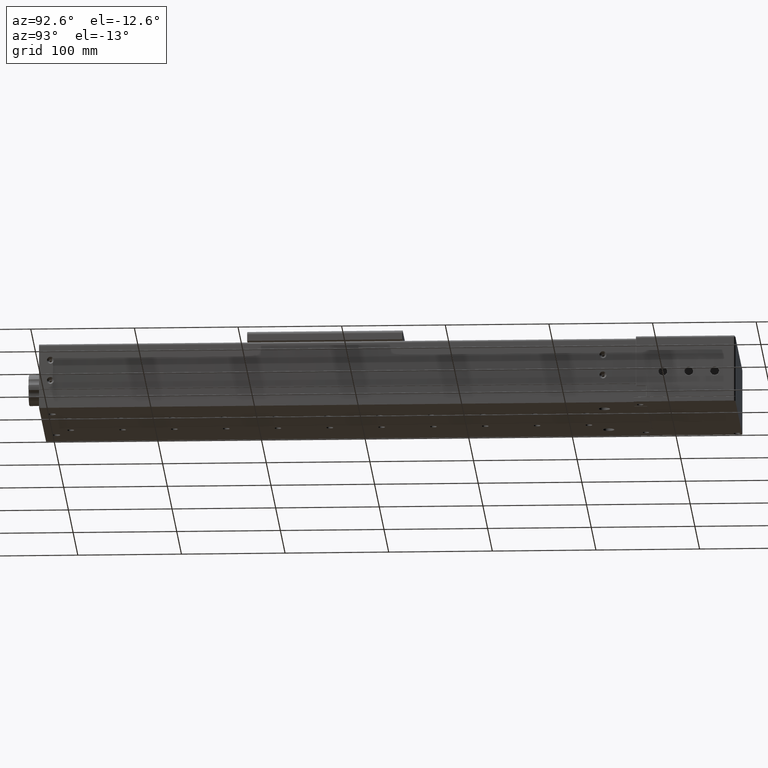
[diagram: clean part render]
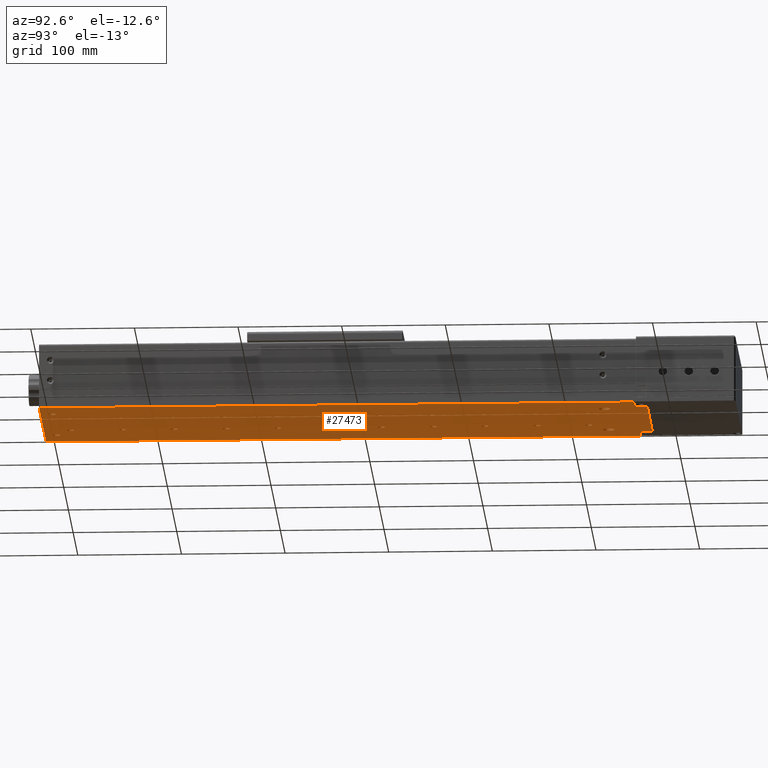
[diagram: same view with one face highlighted and labeled with its STEP entity id]
A machine part, auxiliary view. The second image highlights one B-rep face of the part: STEP entity #27473.
In plain terms, the highlighted planar face has unit normal (0, 0, 1).
Its self-contained STEP definition (entity closure, byte-faithful):
#279 = AXIS2_PLACEMENT_3D ( 'NONE', #15485, #71855, #52906 ) ;
#487 = VERTEX_POINT ( 'NONE', #1326 ) ;
#602 = EDGE_CURVE ( 'NONE', #27250, #48139, #22687, .T. ) ;
#1086 = VERTEX_POINT ( 'NONE', #22974 ) ;
#1259 = CARTESIAN_POINT ( 'NONE',  ( -24.58543230288090342, -98.96880975817198589, -21.95334974644444870 ) ) ;
#1291 = CARTESIAN_POINT ( 'NONE',  ( -45.58543230288089632, 169.3311902418280113, -21.95334974644444870 ) ) ;
#1326 = CARTESIAN_POINT ( 'NONE',  ( -45.58543230288079684, 419.3311902418280397, -21.95334974644444870 ) ) ;
#1374 = VERTEX_POINT ( 'NONE', #66787 ) ;
#1511 = DIRECTION ( 'NONE',  ( 0.000000000000000000, 0.000000000000000000, 1.000000000000000000 ) ) ;
#1569 = EDGE_CURVE ( 'NONE', #40526, #77483, #32326, .T. ) ;
#1806 = CARTESIAN_POINT ( 'NONE',  ( -45.58543230288079684, 216.0311902418279999, -21.95334974644444870 ) ) ;
#1887 = ORIENTED_EDGE ( 'NONE', *, *, #7838, .T. ) ;
#2257 = ORIENTED_EDGE ( 'NONE', *, *, #46581, .T. ) ;
#2282 = ORIENTED_EDGE ( 'NONE', *, *, #61911, .T. ) ;
#2409 = ORIENTED_EDGE ( 'NONE', *, *, #7058, .T. ) ;
#2726 = VERTEX_POINT ( 'NONE', #66497 ) ;
#2813 = VERTEX_POINT ( 'NONE', #11757 ) ;
#3044 = CARTESIAN_POINT ( 'NONE',  ( -45.58543230288079684, 216.0311902418279999, -21.95334974644444870 ) ) ;
#3141 = CIRCLE ( 'NONE', #70161, 3.300000000000000711 ) ;
#3279 = CARTESIAN_POINT ( 'NONE',  ( -45.58543230288079684, 219.3311902418280113, -21.95334974644444870 ) ) ;
#3294 = AXIS2_PLACEMENT_3D ( 'NONE', #53556, #74133, #11169 ) ;
#3390 = EDGE_LOOP ( 'NONE', ( #64532, #79206 ) ) ;
#3430 = EDGE_CURVE ( 'NONE', #56616, #49603, #44733, .T. ) ;
#3671 = FACE_BOUND ( 'NONE', #65687, .T. ) ;
#3918 = VERTEX_POINT ( 'NONE', #55601 ) ;
#4125 = CIRCLE ( 'NONE', #54025, 3.300000000000025135 ) ;
#4309 = EDGE_LOOP ( 'NONE', ( #47593, #41946 ) ) ;
#4347 = DIRECTION ( 'NONE',  ( 0.000000000000000000, 0.000000000000000000, 1.000000000000000000 ) ) ;
#4423 = DIRECTION ( 'NONE',  ( 0.000000000000000000, 1.000000000000000000, 0.000000000000000000 ) ) ;
#4480 = FACE_BOUND ( 'NONE', #37644, .T. ) ;
#4633 = VERTEX_POINT ( 'NONE', #27515 ) ;
#4751 = DIRECTION ( 'NONE',  ( 0.000000000000000000, 0.000000000000000000, -1.000000000000000000 ) ) ;
#4768 = CIRCLE ( 'NONE', #15294, 3.300000000000025135 ) ;
#4781 = EDGE_CURVE ( 'NONE', #4633, #1086, #11955, .T. ) ;
#4917 = ORIENTED_EDGE ( 'NONE', *, *, #21701, .F. ) ;
#5173 = AXIS2_PLACEMENT_3D ( 'NONE', #76944, #14381, #39484 ) ;
#5645 = ORIENTED_EDGE ( 'NONE', *, *, #72952, .T. ) ;
#5664 = ORIENTED_EDGE ( 'NONE', *, *, #73902, .T. ) ;
#5856 = VERTEX_POINT ( 'NONE', #35179 ) ;
#5911 = VERTEX_POINT ( 'NONE', #52882 ) ;
#5921 = DIRECTION ( 'NONE',  ( 0.000000000000000000, 0.000000000000000000, 1.000000000000000000 ) ) ;
#6085 = EDGE_LOOP ( 'NONE', ( #41246, #34221 ) ) ;
#6249 = DIRECTION ( 'NONE',  ( 0.000000000000000000, 0.000000000000000000, 1.000000000000000000 ) ) ;
#6747 = VERTEX_POINT ( 'NONE', #41455 ) ;
#7058 = EDGE_CURVE ( 'NONE', #50783, #25917, #16400, .T. ) ;
#7162 = VERTEX_POINT ( 'NONE', #70629 ) ;
#7382 = EDGE_CURVE ( 'NONE', #21147, #1374, #43821, .T. ) ;
#7414 = FACE_BOUND ( 'NONE', #81017, .T. ) ;
#7675 = VERTEX_POINT ( 'NONE', #21146 ) ;
#7690 = VERTEX_POINT ( 'NONE', #74593 ) ;
#7731 = VECTOR ( 'NONE', #35031, 1000.000000000000000 ) ;
#7838 = EDGE_CURVE ( 'NONE', #53568, #487, #61790, .T. ) ;
#7850 = CIRCLE ( 'NONE', #38061, 3.300000000000000711 ) ;
#7888 = EDGE_CURVE ( 'NONE', #24649, #25649, #25056, .T. ) ;
#7940 = AXIS2_PLACEMENT_3D ( 'NONE', #56457, #75416, #51905 ) ;
#8236 = CIRCLE ( 'NONE', #37134, 3.299999999999997158 ) ;
#8351 = VECTOR ( 'NONE', #12036, 1000.000000000000000 ) ;
#8359 = DIRECTION ( 'NONE',  ( 0.000000000000000000, 1.000000000000000000, 0.000000000000000000 ) ) ;
#8657 = ORIENTED_EDGE ( 'NONE', *, *, #7382, .F. ) ;
#8747 = CARTESIAN_POINT ( 'NONE',  ( -95.58543230288080395, 416.0311902418279715, -21.95334974644444870 ) ) ;
#8754 = AXIS2_PLACEMENT_3D ( 'NONE', #37862, #25535, #81497 ) ;
#8848 = VERTEX_POINT ( 'NONE', #38773 ) ;
#8942 = CARTESIAN_POINT ( 'NONE',  ( -95.58543230288090342, 16.03119024182795016, -21.95334974644444870 ) ) ;
#9039 = FACE_BOUND ( 'NONE', #33281, .T. ) ;
#9287 = EDGE_LOOP ( 'NONE', ( #69389, #56536 ) ) ;
#9530 = CARTESIAN_POINT ( 'NONE',  ( -15.58543230288080039, 476.0311902418279715, -21.95334974644444870 ) ) ;
#9837 = ORIENTED_EDGE ( 'NONE', *, *, #67572, .F. ) ;
#10122 = DIRECTION ( 'NONE',  ( 0.000000000000000000, 1.000000000000000000, 0.000000000000000000 ) ) ;
#10349 = DIRECTION ( 'NONE',  ( 0.000000000000000000, 1.000000000000000000, 0.000000000000000000 ) ) ;
#10452 = DIRECTION ( 'NONE',  ( 0.000000000000000000, 1.000000000000000000, 0.000000000000000000 ) ) ;
#10542 = EDGE_CURVE ( 'NONE', #6747, #21147, #24948, .T. ) ;
#10642 = PLANE ( 'NONE',  #38570 ) ;
#10707 = CIRCLE ( 'NONE', #59341, 3.299999999999997158 ) ;
#10757 = EDGE_CURVE ( 'NONE', #5911, #37740, #36508, .T. ) ;
#10906 = DIRECTION ( 'NONE',  ( -1.224646799147351975E-16, -1.000000000000000000, 0.000000000000000000 ) ) ;
#11005 = DIRECTION ( 'NONE',  ( 0.000000000000000000, 1.000000000000000000, 0.000000000000000000 ) ) ;
#11044 = DIRECTION ( 'NONE',  ( 0.000000000000000000, 0.000000000000000000, 1.000000000000000000 ) ) ;
#11169 = DIRECTION ( 'NONE',  ( 0.000000000000000000, -1.000000000000000000, 0.000000000000000000 ) ) ;
#11216 = DIRECTION ( 'NONE',  ( 0.000000000000000000, 1.000000000000000000, 0.000000000000000000 ) ) ;
#11276 = EDGE_CURVE ( 'NONE', #66854, #2726, #65911, .T. ) ;
#11332 = EDGE_LOOP ( 'NONE', ( #2282, #1887 ) ) ;
#11546 = CIRCLE ( 'NONE', #14204, 3.299999999999997158 ) ;
#11633 = CARTESIAN_POINT ( 'NONE',  ( -45.58543230288079684, 369.3311902418279828, -21.95334974644444870 ) ) ;
#11757 = CARTESIAN_POINT ( 'NONE',  ( -95.58543230288080395, 219.3311902418280113, -21.95334974644444870 ) ) ;
#11818 = CARTESIAN_POINT ( 'NONE',  ( -45.58543230288089632, 166.0311902418280283, -21.95334974644444870 ) ) ;
#11837 = CARTESIAN_POINT ( 'NONE',  ( 4.414567697119205825, 463.8311902418279828, -21.95334974644444870 ) ) ;
#11889 = VERTEX_POINT ( 'NONE', #80110 ) ;
#11955 = CIRCLE ( 'NONE', #69773, 3.300000000000025135 ) ;
#12033 = EDGE_LOOP ( 'NONE', ( #26141, #46053 ) ) ;
#12036 = DIRECTION ( 'NONE',  ( 1.224646799147351975E-16, 1.000000000000000000, 0.000000000000000000 ) ) ;
#12612 = CARTESIAN_POINT ( 'NONE',  ( -45.58543230288089632, 119.3311902418280113, -21.95334974644444870 ) ) ;
#13135 = ORIENTED_EDGE ( 'NONE', *, *, #25790, .T. ) ;
#13190 = AXIS2_PLACEMENT_3D ( 'NONE', #41409, #66506, #10122 ) ;
#13293 = CARTESIAN_POINT ( 'NONE',  ( -45.58543230288079684, 266.0311902418279715, -21.95334974644444870 ) ) ;
#13390 = DIRECTION ( 'NONE',  ( 0.000000000000000000, -1.000000000000000000, 0.000000000000000000 ) ) ;
#13643 = ORIENTED_EDGE ( 'NONE', *, *, #50950, .T. ) ;
#13727 = CARTESIAN_POINT ( 'NONE',  ( -45.58543230288079684, 412.7311902418280170, -21.95334974644444870 ) ) ;
#14186 = DIRECTION ( 'NONE',  ( 0.000000000000000000, 0.000000000000000000, 1.000000000000000000 ) ) ;
#14204 = AXIS2_PLACEMENT_3D ( 'NONE', #1806, #50366, #56534 ) ;
#14355 = EDGE_CURVE ( 'NONE', #46437, #42860, #4125, .T. ) ;
#14381 = DIRECTION ( 'NONE',  ( 0.000000000000000000, 0.000000000000000000, 1.000000000000000000 ) ) ;
#14531 = AXIS2_PLACEMENT_3D ( 'NONE', #25086, #14656, #39750 ) ;
#14656 = DIRECTION ( 'NONE',  ( 0.000000000000000000, 0.000000000000000000, -1.000000000000000000 ) ) ;
#15067 = AXIS2_PLACEMENT_3D ( 'NONE', #46653, #14186, #71367 ) ;
#15247 = CARTESIAN_POINT ( 'NONE',  ( -95.58543230288080395, 216.0311902418279999, -21.95334974644444870 ) ) ;
#15294 = AXIS2_PLACEMENT_3D ( 'NONE', #49104, #80015, #10452 ) ;
#15371 = CIRCLE ( 'NONE', #61338, 3.300000000000025135 ) ;
#15485 = CARTESIAN_POINT ( 'NONE',  ( -95.58543230288090342, -33.96880975817204984, -21.95334974644444870 ) ) ;
#15680 = CARTESIAN_POINT ( 'NONE',  ( -45.58543230288089632, 19.33119024182800061, -21.95334974644444870 ) ) ;
#16025 = VERTEX_POINT ( 'NONE', #64233 ) ;
#16040 = DIRECTION ( 'NONE',  ( 0.000000000000000000, 0.000000000000000000, 1.000000000000000000 ) ) ;
#16051 = DIRECTION ( 'NONE',  ( 0.000000000000000000, 0.000000000000000000, 1.000000000000000000 ) ) ;
#16073 = DIRECTION ( 'NONE',  ( 0.000000000000000000, -1.000000000000000000, 0.000000000000000000 ) ) ;
#16122 = DIRECTION ( 'NONE',  ( 0.000000000000000000, 0.000000000000000000, 1.000000000000000000 ) ) ;
#16224 = DIRECTION ( 'NONE',  ( 0.000000000000000000, 1.000000000000000000, 0.000000000000000000 ) ) ;
#16400 = CIRCLE ( 'NONE', #38816, 3.299999999999997158 ) ;
#16404 = CARTESIAN_POINT ( 'NONE',  ( -95.58543230288080395, 269.3311902418279828, -21.95334974644444870 ) ) ;
#16440 = AXIS2_PLACEMENT_3D ( 'NONE', #8942, #53748, #34453 ) ;
#16790 = EDGE_CURVE ( 'NONE', #52658, #67846, #28213, .T. ) ;
#16804 = FACE_BOUND ( 'NONE', #37211, .T. ) ;
#16807 = EDGE_CURVE ( 'NONE', #50523, #54989, #32122, .T. ) ;
#17269 = AXIS2_PLACEMENT_3D ( 'NONE', #28739, #78923, #58760 ) ;
#17419 = EDGE_CURVE ( 'NONE', #65327, #7675, #41384, .T. ) ;
#17514 = DIRECTION ( 'NONE',  ( -1.000000000000000000, 1.224646799147351975E-16, 0.000000000000000000 ) ) ;
#17925 = CARTESIAN_POINT ( 'NONE',  ( -145.5854323028808324, 463.8311902418279828, -21.95334974644444870 ) ) ;
#18005 = CARTESIAN_POINT ( 'NONE',  ( -45.58543230288089632, -30.66880975817205268, -21.95334974644444870 ) ) ;
#18184 = CIRCLE ( 'NONE', #27374, 3.299999999999997158 ) ;
#18252 = CARTESIAN_POINT ( 'NONE',  ( -45.58543230288089632, 116.0311902418279999, -21.95334974644444870 ) ) ;
#18450 = AXIS2_PLACEMENT_3D ( 'NONE', #26846, #64260, #31788 ) ;
#18610 = CARTESIAN_POINT ( 'NONE',  ( -116.5854323028808039, 434.2311902418280170, -21.95334974644444870 ) ) ;
#18644 = CARTESIAN_POINT ( 'NONE',  ( -45.58543230288089632, 62.73119024182799564, -21.95334974644444870 ) ) ;
#18730 = ORIENTED_EDGE ( 'NONE', *, *, #20055, .T. ) ;
#18965 = DIRECTION ( 'NONE',  ( 1.619162177863810046E-16, -1.000000000000000000, 0.000000000000000000 ) ) ;
#19051 = CARTESIAN_POINT ( 'NONE',  ( -95.58543230288080395, 262.7311902418280170, -21.95334974644444870 ) ) ;
#19485 = DIRECTION ( 'NONE',  ( 0.000000000000000000, 1.000000000000000000, 0.000000000000000000 ) ) ;
#19628 = DIRECTION ( 'NONE',  ( 0.000000000000000000, 0.000000000000000000, 1.000000000000000000 ) ) ;
#19909 = EDGE_LOOP ( 'NONE', ( #40985, #55888 ) ) ;
#19976 = DIRECTION ( 'NONE',  ( 0.000000000000000000, 0.000000000000000000, -1.000000000000000000 ) ) ;
#20055 = EDGE_CURVE ( 'NONE', #74950, #29435, #60516, .T. ) ;
#20075 = VECTOR ( 'NONE', #34130, 1000.000000000000000 ) ;
#20101 = VERTEX_POINT ( 'NONE', #31203 ) ;
#20127 = EDGE_LOOP ( 'NONE', ( #64842, #43306, #4917, #67304, #77523, #8657, #57438, #45805 ) ) ;
#20707 = DIRECTION ( 'NONE',  ( 0.000000000000000000, 0.000000000000000000, 1.000000000000000000 ) ) ;
#20887 = EDGE_CURVE ( 'NONE', #3918, #32875, #25270, .T. ) ;
#20933 = CARTESIAN_POINT ( 'NONE',  ( -95.58543230288090342, -87.26880975817211095, -21.95334974644444870 ) ) ;
#21077 = DIRECTION ( 'NONE',  ( 0.000000000000000000, 0.000000000000000000, 1.000000000000000000 ) ) ;
#21105 = CARTESIAN_POINT ( 'NONE',  ( -45.58543230288079684, 316.0311902418280283, -21.95334974644444870 ) ) ;
#21146 = CARTESIAN_POINT ( 'NONE',  ( -116.5854323028808039, 439.7311902418280170, -21.95334974644444870 ) ) ;
#21147 = VERTEX_POINT ( 'NONE', #55757 ) ;
#21280 = CIRCLE ( 'NONE', #17269, 3.299999999999997158 ) ;
#21437 = CARTESIAN_POINT ( 'NONE',  ( -45.58543230288079684, 366.0311902418280283, -21.95334974644444870 ) ) ;
#21701 = EDGE_CURVE ( 'NONE', #60879, #66854, #71564, .T. ) ;
#21752 = CARTESIAN_POINT ( 'NONE',  ( -95.58543230288080395, 169.3311902418280113, -21.95334974644444870 ) ) ;
#21804 = FACE_BOUND ( 'NONE', #58675, .T. ) ;
#21933 = VERTEX_POINT ( 'NONE', #18005 ) ;
#22016 = VERTEX_POINT ( 'NONE', #50098 ) ;
#22429 = CIRCLE ( 'NONE', #27687, 3.300000000000025135 ) ;
#22449 = DIRECTION ( 'NONE',  ( 0.000000000000000000, 1.000000000000000000, 0.000000000000000000 ) ) ;
#22470 = CARTESIAN_POINT ( 'NONE',  ( -116.5854323028808039, 434.2311902418280170, -21.95334974644444870 ) ) ;
#22552 = DIRECTION ( 'NONE',  ( 1.000000000000000000, -1.224646799147351975E-16, 0.000000000000000000 ) ) ;
#22687 = CIRCLE ( 'NONE', #46347, 5.500000000000005329 ) ;
#22812 = VERTEX_POINT ( 'NONE', #18644 ) ;
#22974 = CARTESIAN_POINT ( 'NONE',  ( -95.58543230288080395, 369.3311902418279828, -21.95334974644444870 ) ) ;
#23016 = FACE_BOUND ( 'NONE', #19909, .T. ) ;
#23038 = AXIS2_PLACEMENT_3D ( 'NONE', #80671, #31678, #37440 ) ;
#23202 = CARTESIAN_POINT ( 'NONE',  ( -95.58543230288090342, -80.66880975817198873, -21.95334974644444870 ) ) ;
#23422 = FACE_BOUND ( 'NONE', #61188, .T. ) ;
#23439 = DIRECTION ( 'NONE',  ( 0.000000000000000000, 1.000000000000000000, 0.000000000000000000 ) ) ;
#23705 = CIRCLE ( 'NONE', #14531, 4.000000000000003553 ) ;
#23775 = DIRECTION ( 'NONE',  ( 0.000000000000000000, 1.000000000000000000, 0.000000000000000000 ) ) ;
#23847 = ORIENTED_EDGE ( 'NONE', *, *, #77163, .T. ) ;
#23933 = CARTESIAN_POINT ( 'NONE',  ( -24.58543230288080039, 428.7311902418279601, -21.95334974644444870 ) ) ;
#24649 = VERTEX_POINT ( 'NONE', #16404 ) ;
#24651 = CARTESIAN_POINT ( 'NONE',  ( -45.58543230288079684, 266.0311902418279715, -21.95334974644444870 ) ) ;
#24948 = LINE ( 'NONE', #17925, #52296 ) ;
#25056 = CIRCLE ( 'NONE', #18450, 3.300000000000025135 ) ;
#25086 = CARTESIAN_POINT ( 'NONE',  ( -24.58543230288090342, -98.96880975817198589, -21.95334974644444870 ) ) ;
#25270 = CIRCLE ( 'NONE', #279, 3.300000000000000711 ) ;
#25433 = EDGE_CURVE ( 'NONE', #11889, #7690, #50531, .T. ) ;
#25535 = DIRECTION ( 'NONE',  ( 0.000000000000000000, 0.000000000000000000, 1.000000000000000000 ) ) ;
#25608 = VERTEX_POINT ( 'NONE', #23202 ) ;
#25649 = VERTEX_POINT ( 'NONE', #19051 ) ;
#25659 = CIRCLE ( 'NONE', #16440, 3.300000000000000711 ) ;
#25706 = ORIENTED_EDGE ( 'NONE', *, *, #1569, .T. ) ;
#25790 = EDGE_CURVE ( 'NONE', #67846, #52658, #28077, .T. ) ;
#25796 = EDGE_LOOP ( 'NONE', ( #64919, #49658 ) ) ;
#25917 = VERTEX_POINT ( 'NONE', #27264 ) ;
#25960 = CARTESIAN_POINT ( 'NONE',  ( -95.58543230288090342, 19.33119024182795087, -21.95334974644444870 ) ) ;
#26141 = ORIENTED_EDGE ( 'NONE', *, *, #62636, .F. ) ;
#26218 = CARTESIAN_POINT ( 'NONE',  ( -15.58543230288080039, 463.8311902418279828, -21.95334974644444870 ) ) ;
#26837 = DIRECTION ( 'NONE',  ( 0.000000000000000000, -1.000000000000000000, 0.000000000000000000 ) ) ;
#26846 = CARTESIAN_POINT ( 'NONE',  ( -95.58543230288080395, 266.0311902418279715, -21.95334974644444870 ) ) ;
#26889 = DIRECTION ( 'NONE',  ( 0.000000000000000000, 1.000000000000000000, 0.000000000000000000 ) ) ;
#27166 = CARTESIAN_POINT ( 'NONE',  ( -24.58543230288090342, -102.9688097581719859, -21.95334974644444870 ) ) ;
#27250 = VERTEX_POINT ( 'NONE', #23933 ) ;
#27264 = CARTESIAN_POINT ( 'NONE',  ( -45.58543230288089632, -87.26880975817199726, -21.95334974644444870 ) ) ;
#27374 = AXIS2_PLACEMENT_3D ( 'NONE', #51715, #70247, #57479 ) ;
#27457 = ORIENTED_EDGE ( 'NONE', *, *, #60572, .T. ) ;
#27473 = ADVANCED_FACE ( 'NONE', ( #28000, #71596, #9039, #53033, #21804, #46873, #45278, #7414, #70375, #39099, #23016, #47678, #55069, #72789, #3671, #42327, #59627, #4480, #48088, #16804, #41505, #34932, #23422, #66602, #41918, #66208, #54248 ), #10642, .F. ) ;
#27515 = CARTESIAN_POINT ( 'NONE',  ( -95.58543230288080395, 362.7311902418279601, -21.95334974644444870 ) ) ;
#27687 = AXIS2_PLACEMENT_3D ( 'NONE', #13293, #55681, #61852 ) ;
#27828 = ORIENTED_EDGE ( 'NONE', *, *, #78979, .T. ) ;
#28000 = FACE_BOUND ( 'NONE', #12033, .T. ) ;
#28077 = CIRCLE ( 'NONE', #51704, 3.300000000000025135 ) ;
#28146 = EDGE_CURVE ( 'NONE', #7690, #11889, #15371, .T. ) ;
#28213 = CIRCLE ( 'NONE', #75553, 3.300000000000025135 ) ;
#28395 = CARTESIAN_POINT ( 'NONE',  ( -45.58543230288089632, -37.26880975817205410, -21.95334974644444870 ) ) ;
#28461 = DIRECTION ( 'NONE',  ( 0.000000000000000000, 0.000000000000000000, -1.000000000000000000 ) ) ;
#28544 = CARTESIAN_POINT ( 'NONE',  ( -116.5854323028810029, -102.9688097581719859, -21.95334974644444870 ) ) ;
#28739 = CARTESIAN_POINT ( 'NONE',  ( -95.58543230288090342, 66.03119024182799990, -21.95334974644444870 ) ) ;
#29435 = VERTEX_POINT ( 'NONE', #81122 ) ;
#29598 = AXIS2_PLACEMENT_3D ( 'NONE', #22470, #4751, #73890 ) ;
#29661 = VECTOR ( 'NONE', #10906, 1000.000000000000000 ) ;
#30667 = CARTESIAN_POINT ( 'NONE',  ( -145.5854323028810029, -109.9688097581720001, -21.95334974644444870 ) ) ;
#30988 = DIRECTION ( 'NONE',  ( 0.000000000000000000, 0.000000000000000000, 1.000000000000000000 ) ) ;
#31097 = AXIS2_PLACEMENT_3D ( 'NONE', #37186, #36784, #19485 ) ;
#31203 = CARTESIAN_POINT ( 'NONE',  ( -45.58543230288079684, 262.7311902418280170, -21.95334974644444870 ) ) ;
#31394 = CARTESIAN_POINT ( 'NONE',  ( -45.58543230288079684, 366.0311902418280283, -21.95334974644444870 ) ) ;
#31453 = EDGE_CURVE ( 'NONE', #77695, #25608, #36045, .T. ) ;
#31678 = DIRECTION ( 'NONE',  ( 0.000000000000000000, 0.000000000000000000, 1.000000000000000000 ) ) ;
#31788 = DIRECTION ( 'NONE',  ( 0.000000000000000000, 1.000000000000000000, 0.000000000000000000 ) ) ;
#32006 = ORIENTED_EDGE ( 'NONE', *, *, #16807, .T. ) ;
#32122 = CIRCLE ( 'NONE', #37400, 3.299999999999997158 ) ;
#32143 = AXIS2_PLACEMENT_3D ( 'NONE', #45621, #52184, #77328 ) ;
#32279 = CIRCLE ( 'NONE', #32143, 3.299999999999997158 ) ;
#32326 = CIRCLE ( 'NONE', #74371, 3.300000000000025135 ) ;
#32531 = CARTESIAN_POINT ( 'NONE',  ( -125.5854323028808039, 476.0311902418279715, -21.95334974644444870 ) ) ;
#32875 = VERTEX_POINT ( 'NONE', #63534 ) ;
#33079 = CARTESIAN_POINT ( 'NONE',  ( -45.58543230288089632, 162.7311902418279885, -21.95334974644444870 ) ) ;
#33080 = AXIS2_PLACEMENT_3D ( 'NONE', #42723, #49291, #69048 ) ;
#33281 = EDGE_LOOP ( 'NONE', ( #64985, #73247 ) ) ;
#33336 = CARTESIAN_POINT ( 'NONE',  ( 4.414567697119205825, 463.8311902418279828, -21.95334974644444870 ) ) ;
#33748 = DIRECTION ( 'NONE',  ( 0.000000000000000000, -1.000000000000000000, 0.000000000000000000 ) ) ;
#34130 = DIRECTION ( 'NONE',  ( -1.000000000000000000, 1.224646799147351975E-16, 0.000000000000000000 ) ) ;
#34221 = ORIENTED_EDGE ( 'NONE', *, *, #25433, .T. ) ;
#34336 = EDGE_CURVE ( 'NONE', #1086, #4633, #63261, .T. ) ;
#34364 = CARTESIAN_POINT ( 'NONE',  ( -45.58543230288079684, 319.3311902418279828, -21.95334974644444870 ) ) ;
#34453 = DIRECTION ( 'NONE',  ( 0.000000000000000000, 1.000000000000000000, 0.000000000000000000 ) ) ;
#34932 = FACE_BOUND ( 'NONE', #54395, .T. ) ;
#35031 = DIRECTION ( 'NONE',  ( 1.224646799147351975E-16, 1.000000000000000000, 0.000000000000000000 ) ) ;
#35179 = CARTESIAN_POINT ( 'NONE',  ( -45.58543230288089632, 112.7311902418280027, -21.95334974644444870 ) ) ;
#35275 = CARTESIAN_POINT ( 'NONE',  ( -95.58543230288090342, -83.96880975817198589, -21.95334974644444870 ) ) ;
#35411 = AXIS2_PLACEMENT_3D ( 'NONE', #3044, #35528, #54024 ) ;
#35528 = DIRECTION ( 'NONE',  ( 0.000000000000000000, 0.000000000000000000, 1.000000000000000000 ) ) ;
#35696 = CARTESIAN_POINT ( 'NONE',  ( -95.58543230288090342, 66.03119024182799990, -21.95334974644444870 ) ) ;
#35712 = AXIS2_PLACEMENT_3D ( 'NONE', #67584, #47847, #11216 ) ;
#35786 = CARTESIAN_POINT ( 'NONE',  ( -95.58543230288090342, -83.96880975817198589, -21.95334974644444870 ) ) ;
#36045 = CIRCLE ( 'NONE', #45270, 3.299999999999997158 ) ;
#36195 = DIRECTION ( 'NONE',  ( 0.000000000000000000, 1.000000000000000000, 0.000000000000000000 ) ) ;
#36508 = CIRCLE ( 'NONE', #66747, 3.299999999999997158 ) ;
#36641 = CIRCLE ( 'NONE', #39291, 3.300000000000000711 ) ;
#36784 = DIRECTION ( 'NONE',  ( 0.000000000000000000, 0.000000000000000000, 1.000000000000000000 ) ) ;
#36836 = VERTEX_POINT ( 'NONE', #28544 ) ;
#37134 = AXIS2_PLACEMENT_3D ( 'NONE', #44112, #6249, #56453 ) ;
#37186 = CARTESIAN_POINT ( 'NONE',  ( -95.58543230288080395, 216.0311902418279999, -21.95334974644444870 ) ) ;
#37210 = DIRECTION ( 'NONE',  ( 0.000000000000000000, 1.000000000000000000, 0.000000000000000000 ) ) ;
#37211 = EDGE_LOOP ( 'NONE', ( #54802, #13643 ) ) ;
#37400 = AXIS2_PLACEMENT_3D ( 'NONE', #35696, #48443, #23775 ) ;
#37440 = DIRECTION ( 'NONE',  ( 0.000000000000000000, 1.000000000000000000, 0.000000000000000000 ) ) ;
#37450 = CARTESIAN_POINT ( 'NONE',  ( -45.58543230288089632, -80.66880975817198873, -21.95334974644444870 ) ) ;
#37644 = EDGE_LOOP ( 'NONE', ( #53093, #77238 ) ) ;
#37740 = VERTEX_POINT ( 'NONE', #21752 ) ;
#37745 = EDGE_CURVE ( 'NONE', #1374, #16025, #40268, .T. ) ;
#37862 = CARTESIAN_POINT ( 'NONE',  ( -45.58543230288089632, -83.96880975817198589, -21.95334974644444870 ) ) ;
#38061 = AXIS2_PLACEMENT_3D ( 'NONE', #80722, #48999, #10349 ) ;
#38069 = CIRCLE ( 'NONE', #56431, 4.000000000000003553 ) ;
#38570 = AXIS2_PLACEMENT_3D ( 'NONE', #48493, #11044, #60830 ) ;
#38773 = CARTESIAN_POINT ( 'NONE',  ( -125.5854323028808039, 476.0311902418279715, -21.95334974644444870 ) ) ;
#38816 = AXIS2_PLACEMENT_3D ( 'NONE', #52495, #19628, #39767 ) ;
#38851 = VECTOR ( 'NONE', #18965, 1000.000000000000000 ) ;
#39099 = FACE_BOUND ( 'NONE', #3390, .T. ) ;
#39291 = AXIS2_PLACEMENT_3D ( 'NONE', #53692, #78828, #22449 ) ;
#39364 = CIRCLE ( 'NONE', #68241, 3.300000000000025135 ) ;
#39484 = DIRECTION ( 'NONE',  ( 0.000000000000000000, 1.000000000000000000, 0.000000000000000000 ) ) ;
#39547 = CARTESIAN_POINT ( 'NONE',  ( -95.58543230288080395, 112.7311902418280027, -21.95334974644444870 ) ) ;
#39750 = DIRECTION ( 'NONE',  ( 0.000000000000000000, -1.000000000000000000, 0.000000000000000000 ) ) ;
#39767 = DIRECTION ( 'NONE',  ( 0.000000000000000000, 1.000000000000000000, 0.000000000000000000 ) ) ;
#39906 = AXIS2_PLACEMENT_3D ( 'NONE', #42151, #80434, #43379 ) ;
#40243 = VECTOR ( 'NONE', #45351, 1000.000000000000000 ) ;
#40268 = LINE ( 'NONE', #59178, #48278 ) ;
#40526 = VERTEX_POINT ( 'NONE', #11633 ) ;
#40625 = CIRCLE ( 'NONE', #41903, 5.500000000000005329 ) ;
#40738 = DIRECTION ( 'NONE',  ( 0.000000000000000000, 1.000000000000000000, 0.000000000000000000 ) ) ;
#40798 = AXIS2_PLACEMENT_3D ( 'NONE', #24651, #45587, #76481 ) ;
#40985 = ORIENTED_EDGE ( 'NONE', *, *, #56806, .T. ) ;
#41043 = EDGE_CURVE ( 'NONE', #37740, #5911, #18184, .T. ) ;
#41246 = ORIENTED_EDGE ( 'NONE', *, *, #28146, .T. ) ;
#41384 = CIRCLE ( 'NONE', #29598, 5.500000000000005329 ) ;
#41409 = CARTESIAN_POINT ( 'NONE',  ( -45.58543230288089632, 16.03119024182799990, -21.95334974644444870 ) ) ;
#41455 = CARTESIAN_POINT ( 'NONE',  ( -125.5854323028808039, 463.8311902418279828, -21.95334974644444870 ) ) ;
#41505 = FACE_BOUND ( 'NONE', #77249, .T. ) ;
#41520 = DIRECTION ( 'NONE',  ( 0.000000000000000000, 0.000000000000000000, 1.000000000000000000 ) ) ;
#41562 = CARTESIAN_POINT ( 'NONE',  ( -95.58543230288080395, 312.7311902418280170, -21.95334974644444870 ) ) ;
#41824 = ORIENTED_EDGE ( 'NONE', *, *, #77727, .T. ) ;
#41859 = CARTESIAN_POINT ( 'NONE',  ( -95.58543230288080395, 316.0311902418280283, -21.95334974644444870 ) ) ;
#41903 = AXIS2_PLACEMENT_3D ( 'NONE', #18610, #75813, #26837 ) ;
#41918 = FACE_BOUND ( 'NONE', #11332, .T. ) ;
#41946 = ORIENTED_EDGE ( 'NONE', *, *, #68832, .T. ) ;
#42070 = VERTEX_POINT ( 'NONE', #49796 ) ;
#42151 = CARTESIAN_POINT ( 'NONE',  ( -45.58543230288089632, 16.03119024182799990, -21.95334974644444870 ) ) ;
#42154 = VERTEX_POINT ( 'NONE', #68330 ) ;
#42327 = FACE_BOUND ( 'NONE', #65802, .T. ) ;
#42365 = EDGE_LOOP ( 'NONE', ( #52749, #18730 ) ) ;
#42453 = ORIENTED_EDGE ( 'NONE', *, *, #53512, .T. ) ;
#42723 = CARTESIAN_POINT ( 'NONE',  ( -95.58543230288080395, 116.0311902418279999, -21.95334974644444870 ) ) ;
#42860 = VERTEX_POINT ( 'NONE', #81206 ) ;
#43306 = ORIENTED_EDGE ( 'NONE', *, *, #11276, .F. ) ;
#43379 = DIRECTION ( 'NONE',  ( 0.000000000000000000, 1.000000000000000000, 0.000000000000000000 ) ) ;
#43821 = LINE ( 'NONE', #30667, #29661 ) ;
#43896 = EDGE_CURVE ( 'NONE', #45493, #72784, #25659, .T. ) ;
#44112 = CARTESIAN_POINT ( 'NONE',  ( -45.58543230288089632, 116.0311902418279999, -21.95334974644444870 ) ) ;
#44186 = CARTESIAN_POINT ( 'NONE',  ( -95.58543230288080395, 366.0311902418280283, -21.95334974644444870 ) ) ;
#44333 = CIRCLE ( 'NONE', #64074, 3.299999999999997158 ) ;
#44497 = VERTEX_POINT ( 'NONE', #27166 ) ;
#44528 = CARTESIAN_POINT ( 'NONE',  ( 4.414567697119120560, -109.9688097581720001, -21.95334974644444870 ) ) ;
#44656 = DIRECTION ( 'NONE',  ( 0.000000000000000000, 0.000000000000000000, 1.000000000000000000 ) ) ;
#44733 = CIRCLE ( 'NONE', #13190, 3.300000000000000711 ) ;
#44863 = CIRCLE ( 'NONE', #65891, 5.500000000000005329 ) ;
#45048 = ORIENTED_EDGE ( 'NONE', *, *, #17419, .F. ) ;
#45270 = AXIS2_PLACEMENT_3D ( 'NONE', #35275, #67348, #59953 ) ;
#45278 = FACE_BOUND ( 'NONE', #53691, .T. ) ;
#45351 = DIRECTION ( 'NONE',  ( -1.000000000000000000, 1.224646799147351975E-16, 0.000000000000000000 ) ) ;
#45377 = CIRCLE ( 'NONE', #79583, 3.299999999999997158 ) ;
#45493 = VERTEX_POINT ( 'NONE', #25960 ) ;
#45555 = EDGE_CURVE ( 'NONE', #8848, #6747, #69964, .T. ) ;
#45587 = DIRECTION ( 'NONE',  ( 0.000000000000000000, 0.000000000000000000, 1.000000000000000000 ) ) ;
#45621 = CARTESIAN_POINT ( 'NONE',  ( -95.58543230288080395, 116.0311902418279999, -21.95334974644444870 ) ) ;
#45695 = VERTEX_POINT ( 'NONE', #28395 ) ;
#45805 = ORIENTED_EDGE ( 'NONE', *, *, #45555, .F. ) ;
#46053 = ORIENTED_EDGE ( 'NONE', *, *, #56341, .F. ) ;
#46116 = ORIENTED_EDGE ( 'NONE', *, *, #80388, .T. ) ;
#46309 = CIRCLE ( 'NONE', #75240, 3.299999999999997158 ) ;
#46347 = AXIS2_PLACEMENT_3D ( 'NONE', #66276, #28461, #16073 ) ;
#46437 = VERTEX_POINT ( 'NONE', #34364 ) ;
#46581 = EDGE_CURVE ( 'NONE', #42860, #46437, #4768, .T. ) ;
#46653 = CARTESIAN_POINT ( 'NONE',  ( -95.58543230288080395, 416.0311902418279715, -21.95334974644444870 ) ) ;
#46748 = EDGE_CURVE ( 'NONE', #74352, #2813, #57335, .T. ) ;
#46827 = VERTEX_POINT ( 'NONE', #3279 ) ;
#46873 = FACE_BOUND ( 'NONE', #74974, .T. ) ;
#46910 = VERTEX_POINT ( 'NONE', #76271 ) ;
#47459 = CIRCLE ( 'NONE', #75111, 3.300000000000025135 ) ;
#47475 = ORIENTED_EDGE ( 'NONE', *, *, #34336, .T. ) ;
#47593 = ORIENTED_EDGE ( 'NONE', *, *, #63116, .T. ) ;
#47678 = FACE_BOUND ( 'NONE', #73677, .T. ) ;
#47847 = DIRECTION ( 'NONE',  ( 0.000000000000000000, 0.000000000000000000, 1.000000000000000000 ) ) ;
#48088 = FACE_BOUND ( 'NONE', #4309, .T. ) ;
#48139 = VERTEX_POINT ( 'NONE', #81102 ) ;
#48278 = VECTOR ( 'NONE', #22552, 1000.000000000000000 ) ;
#48443 = DIRECTION ( 'NONE',  ( 0.000000000000000000, 0.000000000000000000, 1.000000000000000000 ) ) ;
#48493 = CARTESIAN_POINT ( 'NONE',  ( -145.5854323028810029, -109.9688097581720001, -21.95334974644444870 ) ) ;
#48742 = CARTESIAN_POINT ( 'NONE',  ( -95.58543230288090342, 69.33119024182799706, -21.95334974644444870 ) ) ;
#48839 = DIRECTION ( 'NONE',  ( 0.000000000000000000, 0.000000000000000000, 1.000000000000000000 ) ) ;
#48841 = EDGE_LOOP ( 'NONE', ( #45048, #9837 ) ) ;
#48970 = CARTESIAN_POINT ( 'NONE',  ( -45.58543230288089632, 12.73119024182800096, -21.95334974644444870 ) ) ;
#48999 = DIRECTION ( 'NONE',  ( 0.000000000000000000, 0.000000000000000000, 1.000000000000000000 ) ) ;
#49104 = CARTESIAN_POINT ( 'NONE',  ( -45.58543230288079684, 316.0311902418280283, -21.95334974644444870 ) ) ;
#49138 = ORIENTED_EDGE ( 'NONE', *, *, #4781, .T. ) ;
#49146 = ORIENTED_EDGE ( 'NONE', *, *, #68130, .T. ) ;
#49291 = DIRECTION ( 'NONE',  ( 0.000000000000000000, 0.000000000000000000, 1.000000000000000000 ) ) ;
#49603 = VERTEX_POINT ( 'NONE', #48970 ) ;
#49658 = ORIENTED_EDGE ( 'NONE', *, *, #62362, .F. ) ;
#49796 = CARTESIAN_POINT ( 'NONE',  ( -45.58543230288079684, 269.3311902418279828, -21.95334974644444870 ) ) ;
#50098 = CARTESIAN_POINT ( 'NONE',  ( -45.58543230288089632, 69.33119024182799706, -21.95334974644444870 ) ) ;
#50366 = DIRECTION ( 'NONE',  ( 0.000000000000000000, 0.000000000000000000, 1.000000000000000000 ) ) ;
#50523 = VERTEX_POINT ( 'NONE', #72862 ) ;
#50531 = CIRCLE ( 'NONE', #15067, 3.300000000000025135 ) ;
#50783 = VERTEX_POINT ( 'NONE', #37450 ) ;
#50950 = EDGE_CURVE ( 'NONE', #25649, #24649, #70903, .T. ) ;
#51627 = AXIS2_PLACEMENT_3D ( 'NONE', #72648, #4347, #73880 ) ;
#51687 = DIRECTION ( 'NONE',  ( 0.000000000000000000, 1.000000000000000000, 0.000000000000000000 ) ) ;
#51704 = AXIS2_PLACEMENT_3D ( 'NONE', #71277, #77867, #77466 ) ;
#51715 = CARTESIAN_POINT ( 'NONE',  ( -95.58543230288080395, 166.0311902418280283, -21.95334974644444870 ) ) ;
#51905 = DIRECTION ( 'NONE',  ( 0.000000000000000000, 1.000000000000000000, 0.000000000000000000 ) ) ;
#52088 = CARTESIAN_POINT ( 'NONE',  ( -45.58543230288089632, 66.03119024182799990, -21.95334974644444870 ) ) ;
#52148 = CARTESIAN_POINT ( 'NONE',  ( -24.58543230288080039, 434.2311902418280170, -21.95334974644444870 ) ) ;
#52184 = DIRECTION ( 'NONE',  ( 0.000000000000000000, 0.000000000000000000, 1.000000000000000000 ) ) ;
#52296 = VECTOR ( 'NONE', #17514, 1000.000000000000000 ) ;
#52495 = CARTESIAN_POINT ( 'NONE',  ( -45.58543230288089632, -83.96880975817198589, -21.95334974644444870 ) ) ;
#52630 = DIRECTION ( 'NONE',  ( 0.000000000000000000, 0.000000000000000000, -1.000000000000000000 ) ) ;
#52658 = VERTEX_POINT ( 'NONE', #71791 ) ;
#52749 = ORIENTED_EDGE ( 'NONE', *, *, #55684, .T. ) ;
#52882 = CARTESIAN_POINT ( 'NONE',  ( -95.58543230288080395, 162.7311902418279885, -21.95334974644444870 ) ) ;
#52906 = DIRECTION ( 'NONE',  ( 0.000000000000000000, 1.000000000000000000, 0.000000000000000000 ) ) ;
#52981 = ORIENTED_EDGE ( 'NONE', *, *, #66065, .T. ) ;
#53033 = FACE_BOUND ( 'NONE', #48841, .T. ) ;
#53093 = ORIENTED_EDGE ( 'NONE', *, *, #75986, .T. ) ;
#53443 = CARTESIAN_POINT ( 'NONE',  ( -95.58543230288090342, 12.73119024182796011, -21.95334974644444870 ) ) ;
#53512 = EDGE_CURVE ( 'NONE', #49603, #56616, #59618, .T. ) ;
#53556 = CARTESIAN_POINT ( 'NONE',  ( -116.5854323028810029, -98.96880975817198589, -21.95334974644444870 ) ) ;
#53568 = VERTEX_POINT ( 'NONE', #13727 ) ;
#53691 = EDGE_LOOP ( 'NONE', ( #49146, #5664 ) ) ;
#53692 = CARTESIAN_POINT ( 'NONE',  ( -95.58543230288090342, 16.03119024182795016, -21.95334974644444870 ) ) ;
#53733 = VERTEX_POINT ( 'NONE', #33079 ) ;
#53748 = DIRECTION ( 'NONE',  ( 0.000000000000000000, 0.000000000000000000, 1.000000000000000000 ) ) ;
#53902 = VERTEX_POINT ( 'NONE', #1291 ) ;
#54024 = DIRECTION ( 'NONE',  ( 0.000000000000000000, 1.000000000000000000, 0.000000000000000000 ) ) ;
#54025 = AXIS2_PLACEMENT_3D ( 'NONE', #21105, #20707, #8359 ) ;
#54248 = FACE_OUTER_BOUND ( 'NONE', #20127, .T. ) ;
#54395 = EDGE_LOOP ( 'NONE', ( #69145, #13135 ) ) ;
#54802 = ORIENTED_EDGE ( 'NONE', *, *, #7888, .T. ) ;
#54989 = VERTEX_POINT ( 'NONE', #48742 ) ;
#55069 = FACE_BOUND ( 'NONE', #9287, .T. ) ;
#55409 = ORIENTED_EDGE ( 'NONE', *, *, #20887, .T. ) ;
#55566 = AXIS2_PLACEMENT_3D ( 'NONE', #11818, #61199, #11005 ) ;
#55601 = CARTESIAN_POINT ( 'NONE',  ( -95.58543230288090342, -37.26880975817205410, -21.95334974644444870 ) ) ;
#55681 = DIRECTION ( 'NONE',  ( 0.000000000000000000, 0.000000000000000000, 1.000000000000000000 ) ) ;
#55684 = EDGE_CURVE ( 'NONE', #29435, #74950, #32279, .T. ) ;
#55757 = CARTESIAN_POINT ( 'NONE',  ( -145.5854323028808324, 463.8311902418279828, -21.95334974644444870 ) ) ;
#55888 = ORIENTED_EDGE ( 'NONE', *, *, #71470, .T. ) ;
#56063 = DIRECTION ( 'NONE',  ( 0.000000000000000000, 1.000000000000000000, 0.000000000000000000 ) ) ;
#56341 = EDGE_CURVE ( 'NONE', #7162, #36836, #67666, .T. ) ;
#56431 = AXIS2_PLACEMENT_3D ( 'NONE', #1259, #52630, #33748 ) ;
#56453 = DIRECTION ( 'NONE',  ( 0.000000000000000000, 1.000000000000000000, 0.000000000000000000 ) ) ;
#56457 = CARTESIAN_POINT ( 'NONE',  ( -45.58543230288079684, 416.0311902418279715, -21.95334974644444870 ) ) ;
#56536 = ORIENTED_EDGE ( 'NONE', *, *, #72023, .T. ) ;
#56534 = DIRECTION ( 'NONE',  ( 0.000000000000000000, 1.000000000000000000, 0.000000000000000000 ) ) ;
#56616 = VERTEX_POINT ( 'NONE', #15680 ) ;
#56806 = EDGE_CURVE ( 'NONE', #22016, #22812, #58513, .T. ) ;
#56941 = AXIS2_PLACEMENT_3D ( 'NONE', #64421, #72199, #16224 ) ;
#57116 = DIRECTION ( 'NONE',  ( 0.000000000000000000, -1.000000000000000000, 0.000000000000000000 ) ) ;
#57335 = CIRCLE ( 'NONE', #31097, 3.299999999999997158 ) ;
#57401 = CARTESIAN_POINT ( 'NONE',  ( -95.58543230288080395, 166.0311902418280283, -21.95334974644444870 ) ) ;
#57438 = ORIENTED_EDGE ( 'NONE', *, *, #10542, .F. ) ;
#57479 = DIRECTION ( 'NONE',  ( 0.000000000000000000, 1.000000000000000000, 0.000000000000000000 ) ) ;
#57642 = EDGE_CURVE ( 'NONE', #2726, #8848, #64272, .T. ) ;
#57701 = DIRECTION ( 'NONE',  ( 0.000000000000000000, 1.000000000000000000, 0.000000000000000000 ) ) ;
#57843 = CIRCLE ( 'NONE', #78884, 4.000000000000003553 ) ;
#57993 = EDGE_CURVE ( 'NONE', #25917, #50783, #74492, .T. ) ;
#58513 = CIRCLE ( 'NONE', #23038, 3.299999999999997158 ) ;
#58675 = EDGE_LOOP ( 'NONE', ( #2409, #64001 ) ) ;
#58760 = DIRECTION ( 'NONE',  ( 0.000000000000000000, 1.000000000000000000, 0.000000000000000000 ) ) ;
#59175 = CIRCLE ( 'NONE', #40798, 3.300000000000025135 ) ;
#59178 = CARTESIAN_POINT ( 'NONE',  ( -145.5854323028810029, -109.9688097581720001, -21.95334974644444870 ) ) ;
#59341 = AXIS2_PLACEMENT_3D ( 'NONE', #52088, #1511, #51687 ) ;
#59618 = CIRCLE ( 'NONE', #39906, 3.300000000000000711 ) ;
#59627 = FACE_BOUND ( 'NONE', #81025, .T. ) ;
#59953 = DIRECTION ( 'NONE',  ( 0.000000000000000000, 1.000000000000000000, 0.000000000000000000 ) ) ;
#60140 = ORIENTED_EDGE ( 'NONE', *, *, #41043, .T. ) ;
#60516 = CIRCLE ( 'NONE', #33080, 3.299999999999997158 ) ;
#60572 = EDGE_CURVE ( 'NONE', #42154, #46827, #61648, .T. ) ;
#60830 = DIRECTION ( 'NONE',  ( 1.000000000000000000, 0.000000000000000000, 0.000000000000000000 ) ) ;
#60879 = VERTEX_POINT ( 'NONE', #11837 ) ;
#61188 = EDGE_LOOP ( 'NONE', ( #25706, #23847 ) ) ;
#61199 = DIRECTION ( 'NONE',  ( 0.000000000000000000, 0.000000000000000000, 1.000000000000000000 ) ) ;
#61338 = AXIS2_PLACEMENT_3D ( 'NONE', #8747, #16122, #26889 ) ;
#61648 = CIRCLE ( 'NONE', #35411, 3.299999999999997158 ) ;
#61790 = CIRCLE ( 'NONE', #7940, 3.300000000000025135 ) ;
#61852 = DIRECTION ( 'NONE',  ( 0.000000000000000000, 1.000000000000000000, 0.000000000000000000 ) ) ;
#61911 = EDGE_CURVE ( 'NONE', #487, #53568, #39364, .T. ) ;
#62362 = EDGE_CURVE ( 'NONE', #46910, #44497, #38069, .T. ) ;
#62636 = EDGE_CURVE ( 'NONE', #36836, #7162, #57843, .T. ) ;
#63116 = EDGE_CURVE ( 'NONE', #42070, #20101, #22429, .T. ) ;
#63261 = CIRCLE ( 'NONE', #35712, 3.300000000000025135 ) ;
#63288 = DIRECTION ( 'NONE',  ( 0.000000000000000000, 0.000000000000000000, -1.000000000000000000 ) ) ;
#63504 = ORIENTED_EDGE ( 'NONE', *, *, #14355, .T. ) ;
#63534 = CARTESIAN_POINT ( 'NONE',  ( -95.58543230288090342, -30.66880975817205268, -21.95334974644444870 ) ) ;
#63661 = ORIENTED_EDGE ( 'NONE', *, *, #3430, .T. ) ;
#63951 = EDGE_CURVE ( 'NONE', #48139, #27250, #44863, .T. ) ;
#64001 = ORIENTED_EDGE ( 'NONE', *, *, #57993, .T. ) ;
#64074 = AXIS2_PLACEMENT_3D ( 'NONE', #15247, #72019, #40738 ) ;
#64233 = CARTESIAN_POINT ( 'NONE',  ( 4.414567697119120560, -109.9688097581720001, -21.95334974644444870 ) ) ;
#64260 = DIRECTION ( 'NONE',  ( 0.000000000000000000, 0.000000000000000000, 1.000000000000000000 ) ) ;
#64272 = LINE ( 'NONE', #70859, #40243 ) ;
#64421 = CARTESIAN_POINT ( 'NONE',  ( -95.58543230288090342, -33.96880975817204984, -21.95334974644444870 ) ) ;
#64532 = ORIENTED_EDGE ( 'NONE', *, *, #43896, .T. ) ;
#64842 = ORIENTED_EDGE ( 'NONE', *, *, #57642, .F. ) ;
#64919 = ORIENTED_EDGE ( 'NONE', *, *, #76294, .F. ) ;
#64985 = ORIENTED_EDGE ( 'NONE', *, *, #602, .F. ) ;
#65327 = VERTEX_POINT ( 'NONE', #72717 ) ;
#65687 = EDGE_LOOP ( 'NONE', ( #27828, #46116 ) ) ;
#65802 = EDGE_LOOP ( 'NONE', ( #60140, #75063 ) ) ;
#65891 = AXIS2_PLACEMENT_3D ( 'NONE', #52148, #63288, #57116 ) ;
#65911 = LINE ( 'NONE', #9530, #7731 ) ;
#66065 = EDGE_CURVE ( 'NONE', #46827, #42154, #11546, .T. ) ;
#66208 = FACE_BOUND ( 'NONE', #6085, .T. ) ;
#66276 = CARTESIAN_POINT ( 'NONE',  ( -24.58543230288080039, 434.2311902418280170, -21.95334974644444870 ) ) ;
#66497 = CARTESIAN_POINT ( 'NONE',  ( -15.58543230288080039, 476.0311902418279715, -21.95334974644444870 ) ) ;
#66506 = DIRECTION ( 'NONE',  ( 0.000000000000000000, 0.000000000000000000, 1.000000000000000000 ) ) ;
#66602 = FACE_BOUND ( 'NONE', #71831, .T. ) ;
#66747 = AXIS2_PLACEMENT_3D ( 'NONE', #57401, #44656, #70978 ) ;
#66787 = CARTESIAN_POINT ( 'NONE',  ( -145.5854323028810029, -109.9688097581720001, -21.95334974644444870 ) ) ;
#66854 = VERTEX_POINT ( 'NONE', #26218 ) ;
#66922 = EDGE_CURVE ( 'NONE', #72784, #45493, #36641, .T. ) ;
#67304 = ORIENTED_EDGE ( 'NONE', *, *, #80881, .F. ) ;
#67348 = DIRECTION ( 'NONE',  ( 0.000000000000000000, 0.000000000000000000, 1.000000000000000000 ) ) ;
#67572 = EDGE_CURVE ( 'NONE', #7675, #65327, #40625, .T. ) ;
#67584 = CARTESIAN_POINT ( 'NONE',  ( -95.58543230288080395, 366.0311902418280283, -21.95334974644444870 ) ) ;
#67666 = CIRCLE ( 'NONE', #3294, 4.000000000000003553 ) ;
#67846 = VERTEX_POINT ( 'NONE', #41562 ) ;
#67953 = ORIENTED_EDGE ( 'NONE', *, *, #31453, .T. ) ;
#68130 = EDGE_CURVE ( 'NONE', #21933, #45695, #7850, .T. ) ;
#68241 = AXIS2_PLACEMENT_3D ( 'NONE', #71687, #21077, #57701 ) ;
#68300 = EDGE_LOOP ( 'NONE', ( #63661, #42453 ) ) ;
#68330 = CARTESIAN_POINT ( 'NONE',  ( -45.58543230288079684, 212.7311902418280170, -21.95334974644444870 ) ) ;
#68832 = EDGE_CURVE ( 'NONE', #20101, #42070, #59175, .T. ) ;
#68848 = DIRECTION ( 'NONE',  ( 0.000000000000000000, 0.000000000000000000, 1.000000000000000000 ) ) ;
#69048 = DIRECTION ( 'NONE',  ( 0.000000000000000000, 1.000000000000000000, 0.000000000000000000 ) ) ;
#69145 = ORIENTED_EDGE ( 'NONE', *, *, #16790, .T. ) ;
#69250 = DIRECTION ( 'NONE',  ( 0.000000000000000000, 1.000000000000000000, 0.000000000000000000 ) ) ;
#69389 = ORIENTED_EDGE ( 'NONE', *, *, #79679, .T. ) ;
#69773 = AXIS2_PLACEMENT_3D ( 'NONE', #44186, #5921, #37210 ) ;
#69964 = LINE ( 'NONE', #32531, #38851 ) ;
#70161 = AXIS2_PLACEMENT_3D ( 'NONE', #78598, #41520, #23439 ) ;
#70247 = DIRECTION ( 'NONE',  ( 0.000000000000000000, 0.000000000000000000, 1.000000000000000000 ) ) ;
#70375 = FACE_BOUND ( 'NONE', #68300, .T. ) ;
#70629 = CARTESIAN_POINT ( 'NONE',  ( -116.5854323028810029, -94.96880975817200010, -21.95334974644444870 ) ) ;
#70859 = CARTESIAN_POINT ( 'NONE',  ( -145.5854323028808324, 476.0311902418279715, -21.95334974644444870 ) ) ;
#70903 = CIRCLE ( 'NONE', #5173, 3.300000000000025135 ) ;
#70978 = DIRECTION ( 'NONE',  ( 0.000000000000000000, 1.000000000000000000, 0.000000000000000000 ) ) ;
#71277 = CARTESIAN_POINT ( 'NONE',  ( -95.58543230288080395, 316.0311902418280283, -21.95334974644444870 ) ) ;
#71367 = DIRECTION ( 'NONE',  ( 0.000000000000000000, 1.000000000000000000, 0.000000000000000000 ) ) ;
#71470 = EDGE_CURVE ( 'NONE', #22812, #22016, #10707, .T. ) ;
#71564 = LINE ( 'NONE', #33336, #20075 ) ;
#71596 = FACE_BOUND ( 'NONE', #25796, .T. ) ;
#71687 = CARTESIAN_POINT ( 'NONE',  ( -45.58543230288079684, 416.0311902418279715, -21.95334974644444870 ) ) ;
#71791 = CARTESIAN_POINT ( 'NONE',  ( -95.58543230288080395, 319.3311902418279828, -21.95334974644444870 ) ) ;
#71831 = EDGE_LOOP ( 'NONE', ( #47475, #49138 ) ) ;
#71855 = DIRECTION ( 'NONE',  ( 0.000000000000000000, 0.000000000000000000, 1.000000000000000000 ) ) ;
#72019 = DIRECTION ( 'NONE',  ( 0.000000000000000000, 0.000000000000000000, 1.000000000000000000 ) ) ;
#72023 = EDGE_CURVE ( 'NONE', #5856, #74465, #46309, .T. ) ;
#72199 = DIRECTION ( 'NONE',  ( 0.000000000000000000, 0.000000000000000000, 1.000000000000000000 ) ) ;
#72429 = DIRECTION ( 'NONE',  ( 0.000000000000000000, 1.000000000000000000, 0.000000000000000000 ) ) ;
#72648 = CARTESIAN_POINT ( 'NONE',  ( -45.58543230288089632, 166.0311902418280283, -21.95334974644444870 ) ) ;
#72655 = CIRCLE ( 'NONE', #51627, 3.299999999999997158 ) ;
#72717 = CARTESIAN_POINT ( 'NONE',  ( -116.5854323028808039, 428.7311902418279601, -21.95334974644444870 ) ) ;
#72784 = VERTEX_POINT ( 'NONE', #53443 ) ;
#72789 = FACE_BOUND ( 'NONE', #42365, .T. ) ;
#72862 = CARTESIAN_POINT ( 'NONE',  ( -95.58543230288090342, 62.73119024182799564, -21.95334974644444870 ) ) ;
#72952 = EDGE_CURVE ( 'NONE', #32875, #3918, #76655, .T. ) ;
#73247 = ORIENTED_EDGE ( 'NONE', *, *, #63951, .F. ) ;
#73657 = ORIENTED_EDGE ( 'NONE', *, *, #75199, .T. ) ;
#73677 = EDGE_LOOP ( 'NONE', ( #41824, #32006 ) ) ;
#73880 = DIRECTION ( 'NONE',  ( 0.000000000000000000, 1.000000000000000000, 0.000000000000000000 ) ) ;
#73890 = DIRECTION ( 'NONE',  ( 0.000000000000000000, -1.000000000000000000, 0.000000000000000000 ) ) ;
#73902 = EDGE_CURVE ( 'NONE', #45695, #21933, #3141, .T. ) ;
#74133 = DIRECTION ( 'NONE',  ( 0.000000000000000000, 0.000000000000000000, -1.000000000000000000 ) ) ;
#74352 = VERTEX_POINT ( 'NONE', #78107 ) ;
#74371 = AXIS2_PLACEMENT_3D ( 'NONE', #31394, #30988, #56063 ) ;
#74465 = VERTEX_POINT ( 'NONE', #12612 ) ;
#74492 = CIRCLE ( 'NONE', #8754, 3.299999999999997158 ) ;
#74593 = CARTESIAN_POINT ( 'NONE',  ( -95.58543230288080395, 419.3311902418280397, -21.95334974644444870 ) ) ;
#74883 = CARTESIAN_POINT ( 'NONE',  ( -45.58543230288079684, 362.7311902418279601, -21.95334974644444870 ) ) ;
#74950 = VERTEX_POINT ( 'NONE', #39547 ) ;
#74974 = EDGE_LOOP ( 'NONE', ( #73657, #67953 ) ) ;
#75063 = ORIENTED_EDGE ( 'NONE', *, *, #10757, .T. ) ;
#75111 = AXIS2_PLACEMENT_3D ( 'NONE', #21437, #16051, #72429 ) ;
#75199 = EDGE_CURVE ( 'NONE', #25608, #77695, #45377, .T. ) ;
#75240 = AXIS2_PLACEMENT_3D ( 'NONE', #18252, #68848, #69250 ) ;
#75341 = CIRCLE ( 'NONE', #55566, 3.299999999999997158 ) ;
#75416 = DIRECTION ( 'NONE',  ( 0.000000000000000000, 0.000000000000000000, 1.000000000000000000 ) ) ;
#75553 = AXIS2_PLACEMENT_3D ( 'NONE', #41859, #48839, #4423 ) ;
#75813 = DIRECTION ( 'NONE',  ( 0.000000000000000000, 0.000000000000000000, -1.000000000000000000 ) ) ;
#75986 = EDGE_CURVE ( 'NONE', #2813, #74352, #44333, .T. ) ;
#76271 = CARTESIAN_POINT ( 'NONE',  ( -24.58543230288090342, -94.96880975817200010, -21.95334974644444870 ) ) ;
#76294 = EDGE_CURVE ( 'NONE', #44497, #46910, #23705, .T. ) ;
#76367 = CARTESIAN_POINT ( 'NONE',  ( -116.5854323028810029, -98.96880975817198589, -21.95334974644444870 ) ) ;
#76481 = DIRECTION ( 'NONE',  ( 0.000000000000000000, 1.000000000000000000, 0.000000000000000000 ) ) ;
#76655 = CIRCLE ( 'NONE', #56941, 3.300000000000000711 ) ;
#76944 = CARTESIAN_POINT ( 'NONE',  ( -95.58543230288080395, 266.0311902418279715, -21.95334974644444870 ) ) ;
#77163 = EDGE_CURVE ( 'NONE', #77483, #40526, #47459, .T. ) ;
#77238 = ORIENTED_EDGE ( 'NONE', *, *, #46748, .T. ) ;
#77249 = EDGE_LOOP ( 'NONE', ( #63504, #2257 ) ) ;
#77328 = DIRECTION ( 'NONE',  ( 0.000000000000000000, 1.000000000000000000, 0.000000000000000000 ) ) ;
#77466 = DIRECTION ( 'NONE',  ( 0.000000000000000000, 1.000000000000000000, 0.000000000000000000 ) ) ;
#77483 = VERTEX_POINT ( 'NONE', #74883 ) ;
#77523 = ORIENTED_EDGE ( 'NONE', *, *, #37745, .F. ) ;
#77695 = VERTEX_POINT ( 'NONE', #20933 ) ;
#77727 = EDGE_CURVE ( 'NONE', #54989, #50523, #21280, .T. ) ;
#77867 = DIRECTION ( 'NONE',  ( 0.000000000000000000, 0.000000000000000000, 1.000000000000000000 ) ) ;
#78107 = CARTESIAN_POINT ( 'NONE',  ( -95.58543230288080395, 212.7311902418280170, -21.95334974644444870 ) ) ;
#78598 = CARTESIAN_POINT ( 'NONE',  ( -45.58543230288089632, -33.96880975817204984, -21.95334974644444870 ) ) ;
#78828 = DIRECTION ( 'NONE',  ( 0.000000000000000000, 0.000000000000000000, 1.000000000000000000 ) ) ;
#78884 = AXIS2_PLACEMENT_3D ( 'NONE', #76367, #19976, #13390 ) ;
#78923 = DIRECTION ( 'NONE',  ( 0.000000000000000000, 0.000000000000000000, 1.000000000000000000 ) ) ;
#78979 = EDGE_CURVE ( 'NONE', #53902, #53733, #75341, .T. ) ;
#79206 = ORIENTED_EDGE ( 'NONE', *, *, #66922, .T. ) ;
#79583 = AXIS2_PLACEMENT_3D ( 'NONE', #35786, #16040, #36195 ) ;
#79679 = EDGE_CURVE ( 'NONE', #74465, #5856, #8236, .T. ) ;
#80015 = DIRECTION ( 'NONE',  ( 0.000000000000000000, 0.000000000000000000, 1.000000000000000000 ) ) ;
#80110 = CARTESIAN_POINT ( 'NONE',  ( -95.58543230288080395, 412.7311902418280170, -21.95334974644444870 ) ) ;
#80388 = EDGE_CURVE ( 'NONE', #53733, #53902, #72655, .T. ) ;
#80434 = DIRECTION ( 'NONE',  ( 0.000000000000000000, 0.000000000000000000, 1.000000000000000000 ) ) ;
#80671 = CARTESIAN_POINT ( 'NONE',  ( -45.58543230288089632, 66.03119024182799990, -21.95334974644444870 ) ) ;
#80722 = CARTESIAN_POINT ( 'NONE',  ( -45.58543230288089632, -33.96880975817204984, -21.95334974644444870 ) ) ;
#80881 = EDGE_CURVE ( 'NONE', #16025, #60879, #81185, .T. ) ;
#81017 = EDGE_LOOP ( 'NONE', ( #5645, #55409 ) ) ;
#81025 = EDGE_LOOP ( 'NONE', ( #52981, #27457 ) ) ;
#81102 = CARTESIAN_POINT ( 'NONE',  ( -24.58543230288080039, 439.7311902418280170, -21.95334974644444870 ) ) ;
#81122 = CARTESIAN_POINT ( 'NONE',  ( -95.58543230288080395, 119.3311902418280113, -21.95334974644444870 ) ) ;
#81185 = LINE ( 'NONE', #44528, #8351 ) ;
#81206 = CARTESIAN_POINT ( 'NONE',  ( -45.58543230288079684, 312.7311902418280170, -21.95334974644444870 ) ) ;
#81497 = DIRECTION ( 'NONE',  ( 0.000000000000000000, 1.000000000000000000, 0.000000000000000000 ) ) ;